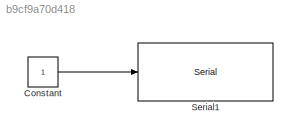
MODEL slx_b9cf9a70d418
KIND model
CONFIG AbsTol = auto
CONFIG EnableMultiTasking = on
CONFIG FixedStep = auto
CONFIG MaxStep = auto
CONFIG MinStep = auto
CONFIG RelTol = 1e-3
CONFIG SampleTimeConstraint = Unconstrained
CONFIG Solver = FixedStepAuto
CONFIG SolverName = FixedStepAuto
CONFIG StartTime = 0.0
CONFIG StopTime = 10.0
BLOCK [Constant] Constant
  OutDataTypeStr = uint8
  SampleTime = 0.1
BLOCK [Reference] Serial1  REF=linux_utilities/Serial
  Ports = [1]
  SourceBlock = linux_utilities/Serial
  SourceType = serial_sys_obj.SerialCOM
LINE Constant:1 -> Serial1:1
